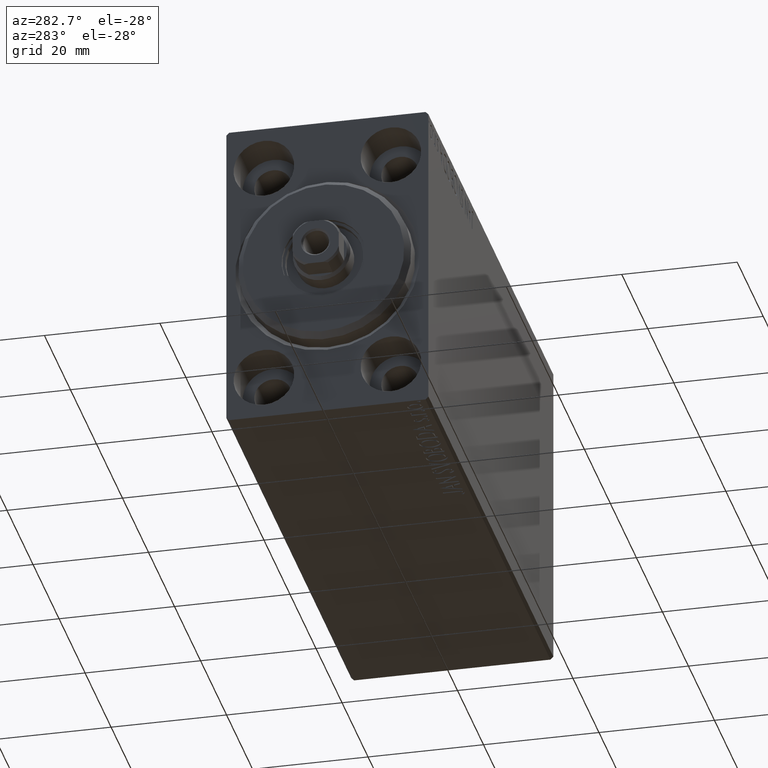
[diagram: clean part render]
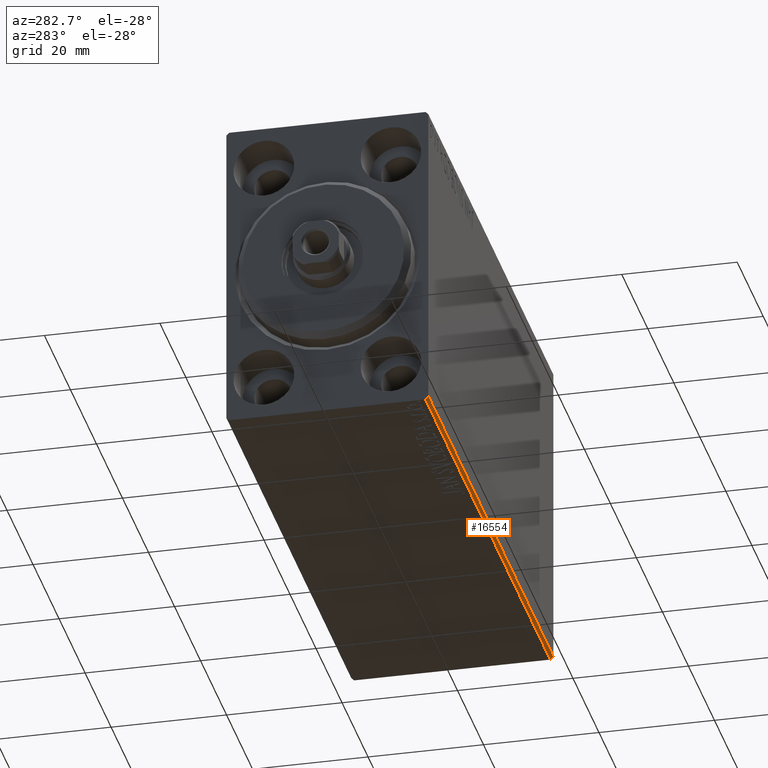
[diagram: same view with one face highlighted and labeled with its STEP entity id]
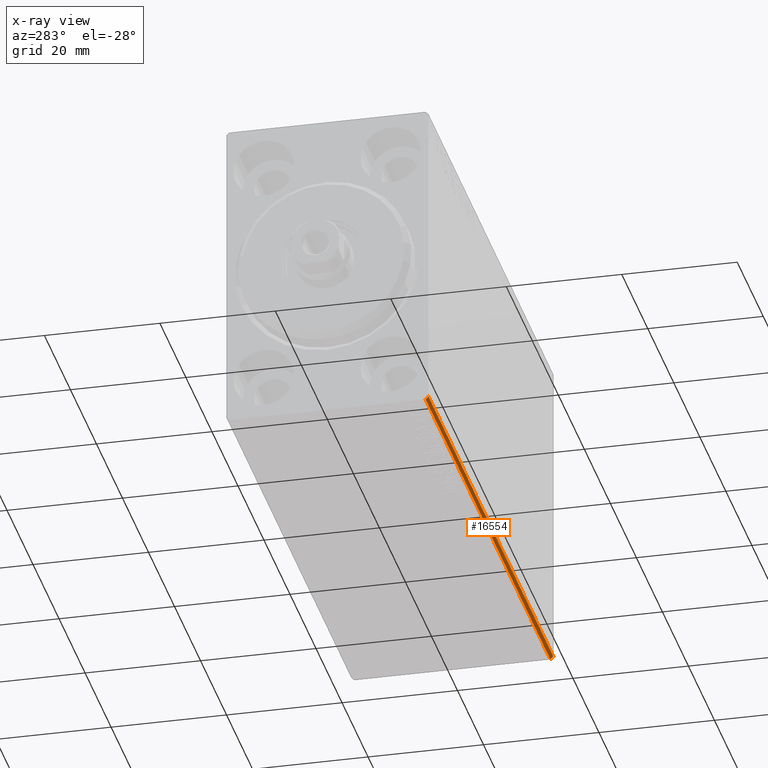
[diagram: x-ray of the same camera — body ghosted, the highlighted face saturated]
A machine part, auxiliary view. The second image highlights one B-rep face of the part: STEP entity #16554.
The next image is the same camera in x-ray: the body ghosted, the highlighted face saturated — about 0% of this face is hidden behind the body in this view.
In plain terms, the highlighted planar face has unit normal (0, 0.7071, 0.7071).
Its self-contained STEP definition (entity closure, byte-faithful):
#1355 = AXIS2_PLACEMENT_3D ( 'NONE', #33937, #3296, #43902 ) ;
#3296 = DIRECTION ( 'NONE',  ( 0.000000000000000000, 0.7071067811865573427, 0.7071067811865378028 ) ) ;
#5119 = CARTESIAN_POINT ( 'NONE',  ( 96.00000000000000000, -17.00000000000001421, -27.50000000000000355 ) ) ;
#5324 = DIRECTION ( 'NONE',  ( 1.000000000000000000, 0.000000000000000000, 0.000000000000000000 ) ) ;
#6486 = VERTEX_POINT ( 'NONE', #40137 ) ;
#6576 = VERTEX_POINT ( 'NONE', #16396 ) ;
#7054 = DIRECTION ( 'NONE',  ( -0.000000000000000000, -0.7071067811865378028, 0.7071067811865573427 ) ) ;
#8021 = LINE ( 'NONE', #5119, #22018 ) ;
#8669 = LINE ( 'NONE', #35748, #37619 ) ;
#8877 = CARTESIAN_POINT ( 'NONE',  ( 96.00000000000000000, -22.25000000000024869, -22.24999999999963407 ) ) ;
#9344 = ORIENTED_EDGE ( 'NONE', *, *, #32531, .F. ) ;
#10186 = FACE_OUTER_BOUND ( 'NONE', #29137, .T. ) ;
#13493 = VERTEX_POINT ( 'NONE', #20947 ) ;
#16396 = CARTESIAN_POINT ( 'NONE',  ( 0.000000000000000000, -17.50000000000000000, -27.00000000000000355 ) ) ;
#16554 = ADVANCED_FACE ( 'NONE', ( #10186 ), #43465, .F. ) ;
#16984 = VERTEX_POINT ( 'NONE', #36670 ) ;
#17771 = VECTOR ( 'NONE', #7054, 1000.000000000000000 ) ;
#17848 = VECTOR ( 'NONE', #29310, 1000.000000000000000 ) ;
#19101 = LINE ( 'NONE', #8877, #17848 ) ;
#20940 = EDGE_CURVE ( 'NONE', #13493, #16984, #8021, .T. ) ;
#20947 = CARTESIAN_POINT ( 'NONE',  ( 96.00000000000000000, -17.00000000000001421, -27.50000000000000355 ) ) ;
#21899 = EDGE_CURVE ( 'NONE', #6576, #6486, #8669, .T. ) ;
#22018 = VECTOR ( 'NONE', #35320, 1000.000000000000000 ) ;
#22632 = ORIENTED_EDGE ( 'NONE', *, *, #20940, .F. ) ;
#23344 = EDGE_CURVE ( 'NONE', #6486, #13493, #19101, .T. ) ;
#26606 = CARTESIAN_POINT ( 'NONE',  ( 0.000000000000000000, -17.00000000000001421, -27.50000000000000355 ) ) ;
#29137 = EDGE_LOOP ( 'NONE', ( #37185, #35964, #9344, #22632 ) ) ;
#29310 = DIRECTION ( 'NONE',  ( -0.000000000000000000, 0.7071067811865378028, -0.7071067811865573427 ) ) ;
#32531 = EDGE_CURVE ( 'NONE', #16984, #6576, #37463, .T. ) ;
#33937 = CARTESIAN_POINT ( 'NONE',  ( 96.00000000000000000, -17.00000000000001421, -27.50000000000000355 ) ) ;
#35320 = DIRECTION ( 'NONE',  ( -1.000000000000000000, 0.000000000000000000, 0.000000000000000000 ) ) ;
#35748 = CARTESIAN_POINT ( 'NONE',  ( 96.00000000000000000, -17.50000000000000000, -27.00000000000000355 ) ) ;
#35964 = ORIENTED_EDGE ( 'NONE', *, *, #21899, .F. ) ;
#36670 = CARTESIAN_POINT ( 'NONE',  ( 0.000000000000000000, -17.00000000000001421, -27.50000000000000355 ) ) ;
#37185 = ORIENTED_EDGE ( 'NONE', *, *, #23344, .F. ) ;
#37463 = LINE ( 'NONE', #26606, #17771 ) ;
#37619 = VECTOR ( 'NONE', #5324, 1000.000000000000000 ) ;
#40137 = CARTESIAN_POINT ( 'NONE',  ( 96.00000000000000000, -17.50000000000000000, -27.00000000000000355 ) ) ;
#43465 = PLANE ( 'NONE',  #1355 ) ;
#43902 = DIRECTION ( 'NONE',  ( -1.000000000000000000, -0.000000000000000000, 0.000000000000000000 ) ) ;